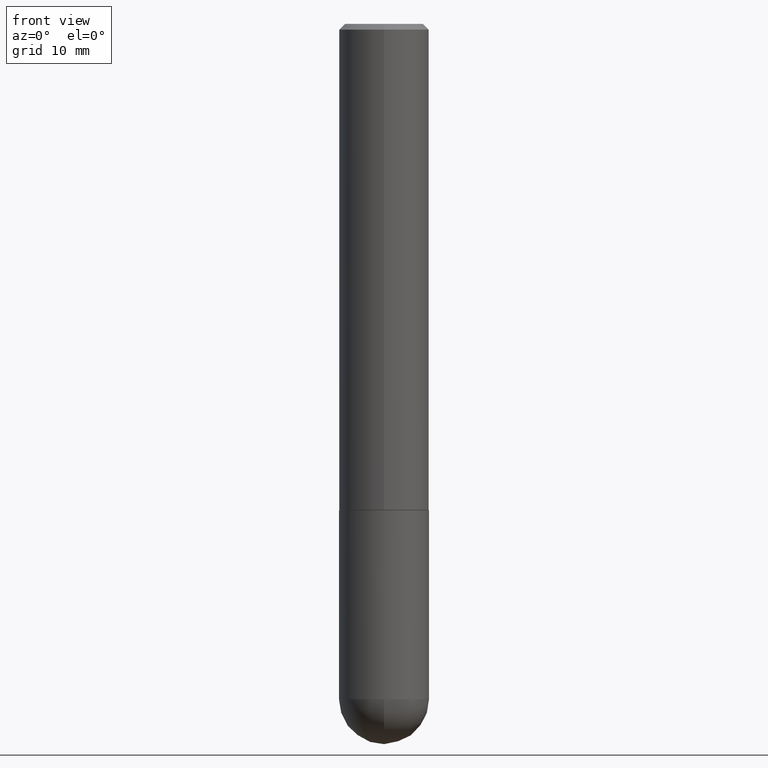
[diagram: clean part render]
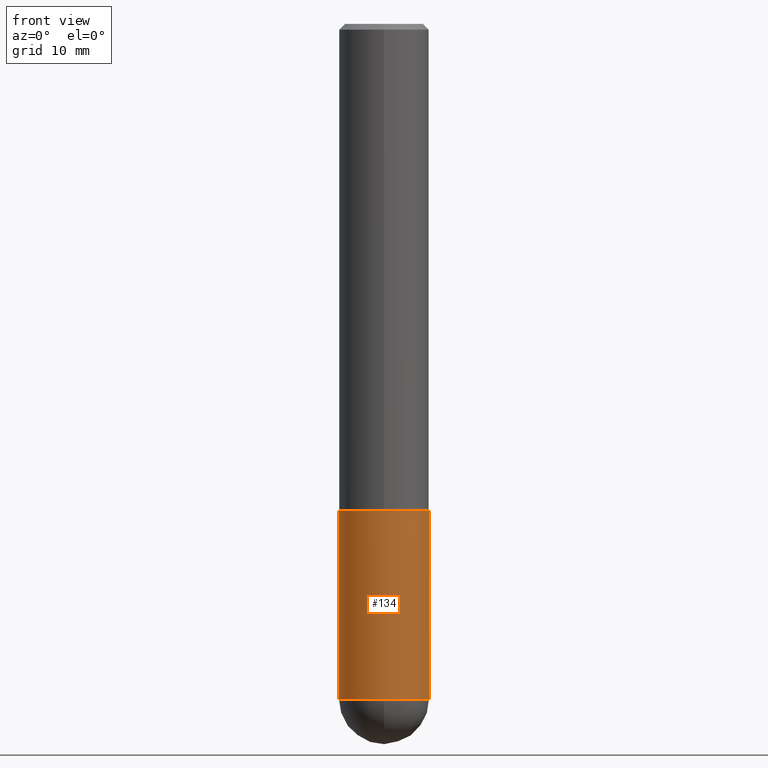
[diagram: same view with one face highlighted and labeled with its STEP entity id]
A machine part, front view. The second image highlights one B-rep face of the part: STEP entity #134.
In plain terms, the highlighted cylindrical surface (partial cylindrical patch) has radius 3.9688 mm, axis along (-0, 0, 1).
Its self-contained STEP definition (entity closure, byte-faithful):
#6 = VERTEX_POINT ( 'NONE', #272 ) ;
#11 = VERTEX_POINT ( 'NONE', #238 ) ;
#15 = CIRCLE ( 'NONE', #250, 0.1562500000000000000 ) ;
#16 = CARTESIAN_POINT ( 'NONE',  ( -0.1562500000000000000, -5.928166919315270321E-15, -2.343750000000000000 ) ) ;
#47 = ORIENTED_EDGE ( 'NONE', *, *, #403, .T. ) ;
#48 = DIRECTION ( 'NONE',  ( -2.445468806185136877E-29, 3.491481338843145188E-15, 1.000000000000000000 ) ) ;
#49 = VERTEX_POINT ( 'NONE', #16 ) ;
#51 = CYLINDRICAL_SURFACE ( 'NONE', #132, 0.1562500000000000000 ) ;
#54 = DIRECTION ( 'NONE',  ( -2.445468806185136597E-29, 3.491481338843145583E-15, 1.000000000000000000 ) ) ;
#57 = DIRECTION ( 'NONE',  ( 1.000000000000000000, -6.982962677686262766E-15, 0.000000000000000000 ) ) ;
#76 = AXIS2_PLACEMENT_3D ( 'NONE', #97, #402, #92 ) ;
#92 = DIRECTION ( 'NONE',  ( 1.000000000000000000, -6.982962677686269077E-15, 0.000000000000000000 ) ) ;
#97 = CARTESIAN_POINT ( 'NONE',  ( 4.127951344840510809E-29, -5.893620499967230340E-15, -1.688000000000000167 ) ) ;
#98 = EDGE_CURVE ( 'NONE', #49, #196, #361, .T. ) ;
#103 = CARTESIAN_POINT ( 'NONE',  ( 5.731567514496413899E-29, -8.183159387913622595E-15, -2.343750000000000000 ) ) ;
#113 = ORIENTED_EDGE ( 'NONE', *, *, #98, .F. ) ;
#127 = DIRECTION ( 'NONE',  ( -2.445468806185136877E-29, 3.491481338843145188E-15, 1.000000000000000000 ) ) ;
#132 = AXIS2_PLACEMENT_3D ( 'NONE', #138, #54, #296 ) ;
#134 = ADVANCED_FACE ( 'NONE', ( #234 ), #51, .T. ) ;
#137 = CARTESIAN_POINT ( 'NONE',  ( 5.731567514496413899E-29, -8.183159387913622595E-15, -2.343750000000000000 ) ) ;
#138 = CARTESIAN_POINT ( 'NONE',  ( 0.000000000000000000, 0.000000000000000000, 0.000000000000000000 ) ) ;
#148 = CARTESIAN_POINT ( 'NONE',  ( 0.1562500000000000000, -1.091087918388479174E-15, 7.619026212181150377E-30 ) ) ;
#161 = VECTOR ( 'NONE', #48, 39.37007874015748143 ) ;
#162 = ORIENTED_EDGE ( 'NONE', *, *, #358, .T. ) ;
#196 = VERTEX_POINT ( 'NONE', #409 ) ;
#200 = CARTESIAN_POINT ( 'NONE',  ( 0.1562500000000000000, -6.984708418355709513E-15, -1.688000000000000167 ) ) ;
#204 = DIRECTION ( 'NONE',  ( -2.445468806185136597E-29, 3.491481338843145583E-15, 1.000000000000000000 ) ) ;
#211 = EDGE_CURVE ( 'NONE', #6, #364, #314, .T. ) ;
#234 = FACE_OUTER_BOUND ( 'NONE', #396, .T. ) ;
#238 = CARTESIAN_POINT ( 'NONE',  ( -1.110223024625101517E-15, -0.1562500000000085487, -2.343749999999999556 ) ) ;
#250 = AXIS2_PLACEMENT_3D ( 'NONE', #137, #204, #57 ) ;
#256 = VECTOR ( 'NONE', #127, 39.37007874015748143 ) ;
#264 = CARTESIAN_POINT ( 'NONE',  ( -0.1562500000000000000, 1.110223024625156540E-15, -7.685836078523291160E-30 ) ) ;
#271 = EDGE_CURVE ( 'NONE', #196, #364, #408, .T. ) ;
#272 = CARTESIAN_POINT ( 'NONE',  ( 0.1562500000000000000, -8.129477862328905246E-15, -2.343750000000000000 ) ) ;
#296 = DIRECTION ( 'NONE',  ( 1.000000000000000000, -6.982962677686266711E-15, 4.876176775795936353E-29 ) ) ;
#314 = LINE ( 'NONE', #148, #256 ) ;
#318 = ORIENTED_EDGE ( 'NONE', *, *, #211, .T. ) ;
#319 = ORIENTED_EDGE ( 'NONE', *, *, #271, .F. ) ;
#332 = DIRECTION ( 'NONE',  ( -2.445468806185136597E-29, 3.491481338843145583E-15, 1.000000000000000000 ) ) ;
#335 = DIRECTION ( 'NONE',  ( 1.000000000000000000, -6.982962677686262766E-15, 0.000000000000000000 ) ) ;
#348 = CIRCLE ( 'NONE', #366, 0.1562500000000000000 ) ;
#358 = EDGE_CURVE ( 'NONE', #49, #11, #348, .T. ) ;
#361 = LINE ( 'NONE', #264, #161 ) ;
#364 = VERTEX_POINT ( 'NONE', #200 ) ;
#366 = AXIS2_PLACEMENT_3D ( 'NONE', #103, #332, #335 ) ;
#396 = EDGE_LOOP ( 'NONE', ( #113, #162, #47, #318, #319 ) ) ;
#402 = DIRECTION ( 'NONE',  ( -2.445468806185136597E-29, 3.491481338843145583E-15, 1.000000000000000000 ) ) ;
#403 = EDGE_CURVE ( 'NONE', #11, #6, #15, .T. ) ;
#408 = CIRCLE ( 'NONE', #76, 0.1562500000000000000 ) ;
#409 = CARTESIAN_POINT ( 'NONE',  ( -0.1562500000000000000, -5.928166919315269532E-15, -1.688000000000000167 ) ) ;